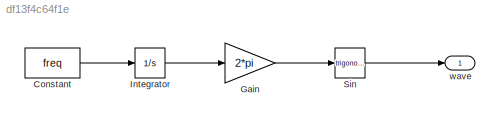
MODEL slx_df13f4c64f1e
KIND model
CONFIG AbsTol = auto
CONFIG EnableMultiTasking = off
CONFIG FixedStep = auto
CONFIG MaxStep = 0.01
CONFIG MinStep = auto
CONFIG RelTol = 1e-3
CONFIG SampleTimeConstraint = Unconstrained
CONFIG SolverName = VariableStepAuto
CONFIG StartTime = 0.0
CONFIG StopTime = 10.0
BLOCK [Constant] Constant
  Value = freq
BLOCK [Gain] Gain
  Gain = 2*pi
BLOCK [Integrator] Integrator
BLOCK [Trigonometry] Sin
BLOCK [Outport] wave
LINE Constant:1 -> Integrator:1
LINE Gain:1 -> Sin:1
LINE Integrator:1 -> Gain:1
LINE Sin:1 -> wave:1
